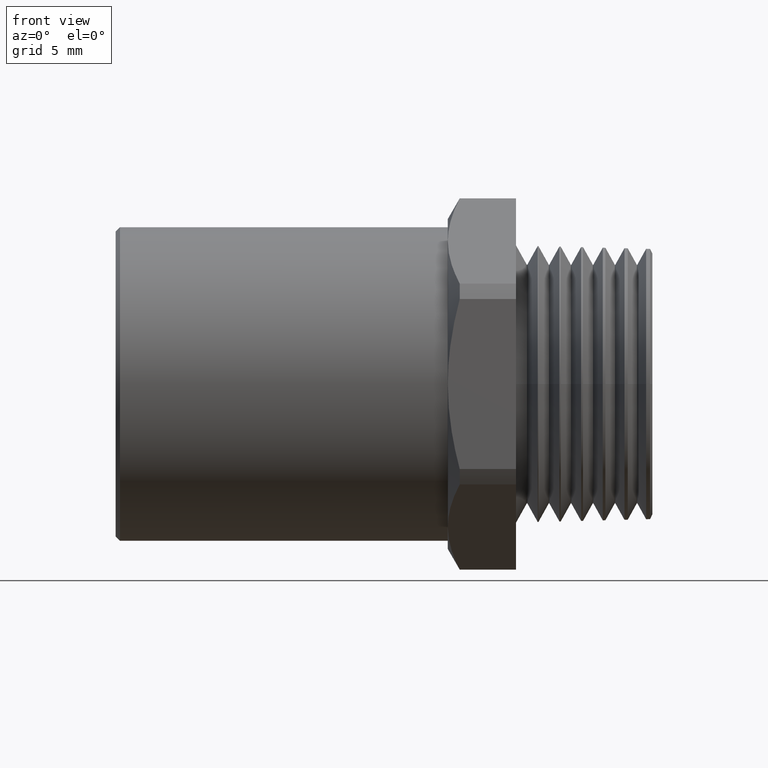
[diagram: clean part render]
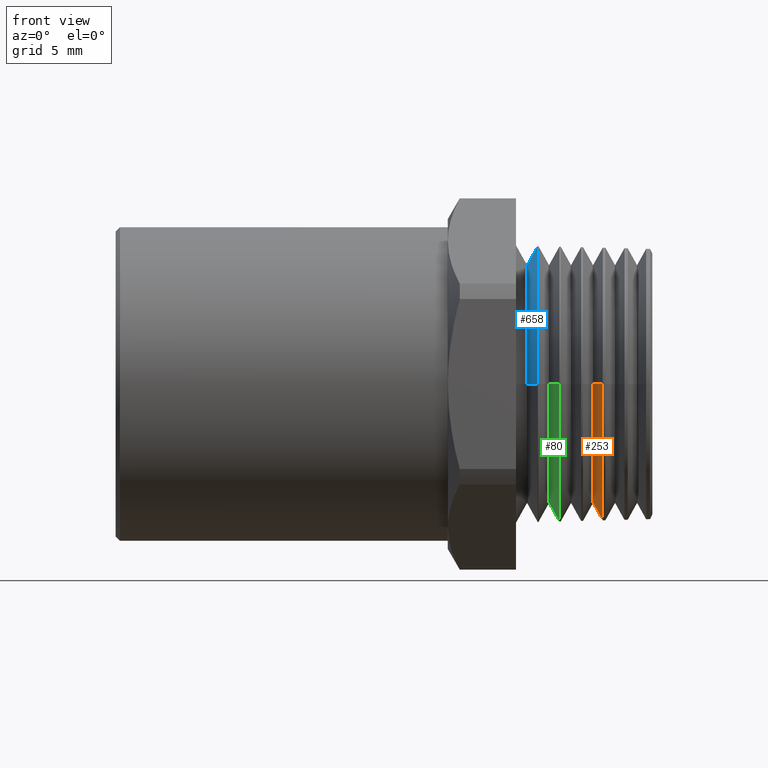
[diagram: same view with three faces highlighted in distinct colors, each labeled with its STEP entity id]
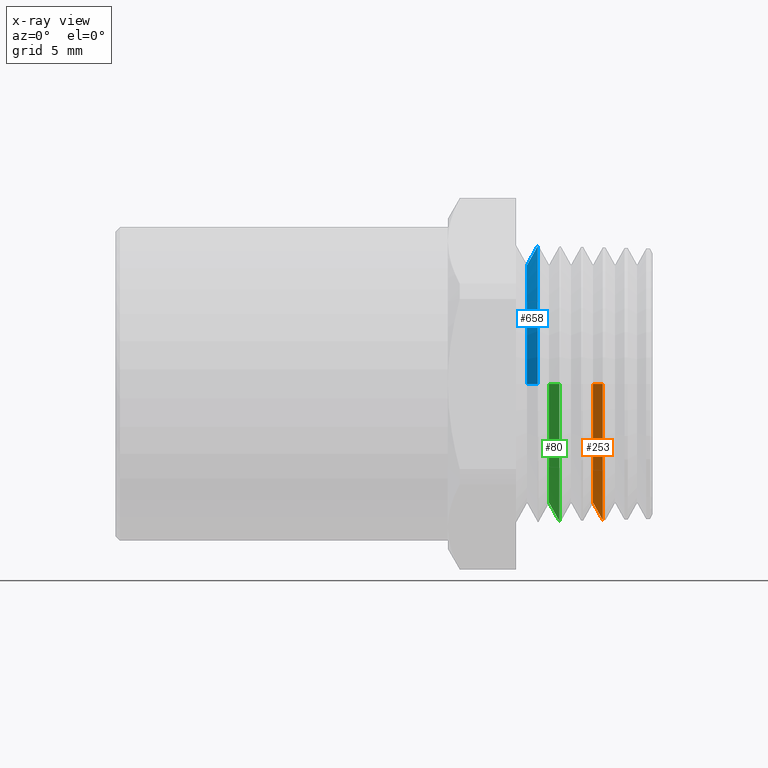
[diagram: x-ray of the same camera — body ghosted, the three highlighted faces saturated]
A machine part, front view with three faces highlighted in distinct colors.
The next image is the same camera in x-ray (body ghosted, the three faces saturated) — at least one of them is partly hidden behind the body in this view.
Their STEP definitions:

[orange] entity #253 — the highlighted conical surface has half-angle 60 deg.
#112 = EDGE_CURVE ( 'NONE', #576, #575, #946, .T. ) ;
#210 = EDGE_CURVE ( 'NONE', #665, #269, #1131, .T. ) ;
#217 = ORIENTED_EDGE ( 'NONE', *, *, #210, .F. ) ;
#223 = ORIENTED_EDGE ( 'NONE', *, *, #651, .T. ) ;
#243 = ORIENTED_EDGE ( 'NONE', *, *, #112, .T. ) ;
#249 = EDGE_CURVE ( 'NONE', #269, #649, #1209, .T. ) ;
#253 = ADVANCED_FACE ( 'NONE', ( #1202 ), #1197, .T. ) ;
#256 = EDGE_LOOP ( 'NONE', ( #257, #243, #223, #262, #217 ) ) ;
#257 = ORIENTED_EDGE ( 'NONE', *, *, #578, .F. ) ;
#262 = ORIENTED_EDGE ( 'NONE', *, *, #249, .F. ) ;
#269 = VERTEX_POINT ( 'NONE', #1240 ) ;
#575 = VERTEX_POINT ( 'NONE', #1788 ) ;
#576 = VERTEX_POINT ( 'NONE', #1787 ) ;
#578 = EDGE_CURVE ( 'NONE', #576, #665, #1786, .T. ) ;
#649 = VERTEX_POINT ( 'NONE', #1931 ) ;
#651 = EDGE_CURVE ( 'NONE', #575, #649, #1930, .T. ) ;
#665 = VERTEX_POINT ( 'NONE', #1965 ) ;
#938 = DIRECTION ( 'NONE',  ( 6.286987199267720100E-017, 1.000000000000000000, 0.0000000000000000000 ) ) ;
#939 = DIRECTION ( 'NONE',  ( 1.000000000000000000, -3.789761643835506200E-017, 0.0000000000000000000 ) ) ;
#940 = CARTESIAN_POINT ( 'NONE',  ( -0.1349300749675651500, -5.265020901947091200E-017, 0.0000000000000000000 ) ) ;
#941 = AXIS2_PLACEMENT_3D ( 'NONE', #940, #939, #938 ) ;
#946 = CIRCLE ( 'NONE', #941, 0.2715776161018803000 ) ;
#1127 = DIRECTION ( 'NONE',  ( 5.510651908282010900E-017, 1.000000000000000000, 0.0000000000000000000 ) ) ;
#1128 = DIRECTION ( 'NONE',  ( 1.000000000000000000, -3.789761643835506200E-017, 0.0000000000000000000 ) ) ;
#1129 = CARTESIAN_POINT ( 'NONE',  ( -0.1128408898604302000, 0.0000000000000000000, 0.0000000000000000000 ) ) ;
#1130 = AXIS2_PLACEMENT_3D ( 'NONE', #1129, #1128, #1127 ) ;
#1131 = CIRCLE ( 'NONE', #1130, 0.3098372070052345900 ) ;
#1192 = DIRECTION ( 'NONE',  ( 6.286987199267720100E-017, 1.000000000000000000, 0.0000000000000000000 ) ) ;
#1193 = DIRECTION ( 'NONE',  ( 1.000000000000000000, -3.789761643835506200E-017, 0.0000000000000000000 ) ) ;
#1194 = CARTESIAN_POINT ( 'NONE',  ( -0.1349300749675651500, -5.265020901947091200E-017, 0.0000000000000000000 ) ) ;
#1195 = AXIS2_PLACEMENT_3D ( 'NONE', #1194, #1193, #1192 ) ;
#1197 = CONICAL_SURFACE ( 'NONE', #1195, 0.2715776161018803000, 1.047197551196605800 ) ;
#1202 = FACE_OUTER_BOUND ( 'NONE', #256, .T. ) ;
#1205 = DIRECTION ( 'NONE',  ( 5.510651908282010900E-017, 1.000000000000000000, 0.0000000000000000000 ) ) ;
#1206 = DIRECTION ( 'NONE',  ( 1.000000000000000000, -3.789761643835506200E-017, 0.0000000000000000000 ) ) ;
#1207 = CARTESIAN_POINT ( 'NONE',  ( -0.1128408898604302000, 0.0000000000000000000, 0.0000000000000000000 ) ) ;
#1208 = AXIS2_PLACEMENT_3D ( 'NONE', #1207, #1206, #1205 ) ;
#1209 = CIRCLE ( 'NONE', #1208, 0.3098372070052345900 ) ;
#1240 = CARTESIAN_POINT ( 'NONE',  ( -0.1128408898604302000, 3.794411438157164200E-017, -0.3098372070052345900 ) ) ;
#1783 = DIRECTION ( 'NONE',  ( 0.4999999999999929500, -0.8660254037844427000, 1.060575238724911800E-016 ) ) ;
#1784 = VECTOR ( 'NONE', #1783, 39.37007874015748100 ) ;
#1785 = CARTESIAN_POINT ( 'NONE',  ( -0.1349300749675651800, -0.2715776161018803600, 3.325866582792364300E-017 ) ) ;
#1786 = LINE ( 'NONE', #1785, #1784 ) ;
#1787 = CARTESIAN_POINT ( 'NONE',  ( -0.1349300749675651800, -0.2715776161018803600, 0.0000000000000000000 ) ) ;
#1788 = CARTESIAN_POINT ( 'NONE',  ( -0.1349300749675651500, 0.2715776161018802500, 3.567331419987923000E-017 ) ) ;
#1927 = DIRECTION ( 'NONE',  ( 0.4999999999999929500, 0.8660254037844425900, 0.0000000000000000000 ) ) ;
#1928 = VECTOR ( 'NONE', #1927, 39.37007874015748900 ) ;
#1929 = CARTESIAN_POINT ( 'NONE',  ( -0.1349300749675651500, 0.2715776161018802500, 0.0000000000000000000 ) ) ;
#1930 = LINE ( 'NONE', #1929, #1928 ) ;
#1931 = CARTESIAN_POINT ( 'NONE',  ( -0.1128408898604302000, 0.3098372070052324800, 0.0000000000000000000 ) ) ;
#1965 = CARTESIAN_POINT ( 'NONE',  ( -0.1128408898604302100, -0.3098372070052326500, 3.794411438157139500E-017 ) ) ;

[blue] entity #658 — the highlighted conical surface has half-angle 60 deg.
#638 = VERTEX_POINT ( 'NONE', #1891 ) ;
#639 = ORIENTED_EDGE ( 'NONE', *, *, #640, .F. ) ;
#640 = EDGE_CURVE ( 'NONE', #662, #638, #1890, .T. ) ;
#658 = ADVANCED_FACE ( 'NONE', ( #1915 ), #1976, .T. ) ;
#659 = EDGE_LOOP ( 'NONE', ( #660, #664, #672, #675, #639 ) ) ;
#660 = ORIENTED_EDGE ( 'NONE', *, *, #661, .T. ) ;
#661 = EDGE_CURVE ( 'NONE', #662, #663, #1914, .T. ) ;
#662 = VERTEX_POINT ( 'NONE', #1967 ) ;
#663 = VERTEX_POINT ( 'NONE', #1966 ) ;
#664 = ORIENTED_EDGE ( 'NONE', *, *, #670, .T. ) ;
#670 = EDGE_CURVE ( 'NONE', #663, #671, #1958, .T. ) ;
#671 = VERTEX_POINT ( 'NONE', #1954 ) ;
#672 = ORIENTED_EDGE ( 'NONE', *, *, #673, .F. ) ;
#673 = EDGE_CURVE ( 'NONE', #674, #671, #1953, .T. ) ;
#674 = VERTEX_POINT ( 'NONE', #1948 ) ;
#675 = ORIENTED_EDGE ( 'NONE', *, *, #676, .F. ) ;
#676 = EDGE_CURVE ( 'NONE', #638, #674, #1947, .T. ) ;
#1887 = DIRECTION ( 'NONE',  ( 0.4999999999999929500, 0.8660254037844425900, 0.0000000000000000000 ) ) ;
#1888 = VECTOR ( 'NONE', #1887, 39.37007874015748900 ) ;
#1889 = CARTESIAN_POINT ( 'NONE',  ( -0.2849300749675651700, 0.2715776161018803000, 0.0000000000000000000 ) ) ;
#1890 = LINE ( 'NONE', #1889, #1888 ) ;
#1891 = CARTESIAN_POINT ( 'NONE',  ( -0.2606068970366619600, 0.3137065960797434900, 0.0000000000000000000 ) ) ;
#1914 = CIRCLE ( 'NONE', #1971, 0.2715776161018803000 ) ;
#1915 = FACE_OUTER_BOUND ( 'NONE', #659, .T. ) ;
#1944 = DIRECTION ( 'NONE',  ( 1.000000000000000000, -3.789761643835506200E-017, 0.0000000000000000000 ) ) ;
#1945 = CARTESIAN_POINT ( 'NONE',  ( -0.2606068970366619600, -4.788735702150489500E-017, 0.0000000000000000000 ) ) ;
#1946 = AXIS2_PLACEMENT_3D ( 'NONE', #1945, #1944, #2005 ) ;
#1947 = CIRCLE ( 'NONE', #1946, 0.3137065960797435500 ) ;
#1948 = CARTESIAN_POINT ( 'NONE',  ( -0.2606068970366619600, 0.0000000000000000000, 0.3137065960797433300 ) ) ;
#1949 = DIRECTION ( 'NONE',  ( 0.0000000000000000000, 1.000000000000000000, 0.0000000000000000000 ) ) ;
#1950 = DIRECTION ( 'NONE',  ( 1.000000000000000000, -3.789761643835506200E-017, 0.0000000000000000000 ) ) ;
#1951 = CARTESIAN_POINT ( 'NONE',  ( -0.2606068970366619600, -4.788735702150489500E-017, 0.0000000000000000000 ) ) ;
#1952 = AXIS2_PLACEMENT_3D ( 'NONE', #1951, #1950, #1949 ) ;
#1953 = CIRCLE ( 'NONE', #1952, 0.3137065960797435500 ) ;
#1954 = CARTESIAN_POINT ( 'NONE',  ( -0.2606068970366619600, -0.3137065960797436000, 3.841797787604695300E-017 ) ) ;
#1955 = DIRECTION ( 'NONE',  ( 0.4999999999999929500, -0.8660254037844427000, 1.060575238724911800E-016 ) ) ;
#1956 = VECTOR ( 'NONE', #1955, 39.37007874015748100 ) ;
#1957 = CARTESIAN_POINT ( 'NONE',  ( -0.2849300749675651700, -0.2715776161018803600, 3.325866582792364300E-017 ) ) ;
#1958 = LINE ( 'NONE', #1957, #1956 ) ;
#1966 = CARTESIAN_POINT ( 'NONE',  ( -0.2849300749675651700, -0.2715776161018803600, 0.0000000000000000000 ) ) ;
#1967 = CARTESIAN_POINT ( 'NONE',  ( -0.2849300749675651700, 0.2715776161018803000, 3.591752000053264400E-017 ) ) ;
#1968 = DIRECTION ( 'NONE',  ( 0.0000000000000000000, 1.000000000000000000, 0.0000000000000000000 ) ) ;
#1969 = DIRECTION ( 'NONE',  ( 1.000000000000000000, -3.789761643835506200E-017, 0.0000000000000000000 ) ) ;
#1970 = CARTESIAN_POINT ( 'NONE',  ( -0.2849300749675651700, -4.696556655371765400E-017, 0.0000000000000000000 ) ) ;
#1971 = AXIS2_PLACEMENT_3D ( 'NONE', #1970, #1969, #1968 ) ;
#1972 = DIRECTION ( 'NONE',  ( 0.0000000000000000000, 1.000000000000000000, 0.0000000000000000000 ) ) ;
#1973 = DIRECTION ( 'NONE',  ( 1.000000000000000000, -3.789761643835506200E-017, 0.0000000000000000000 ) ) ;
#1974 = CARTESIAN_POINT ( 'NONE',  ( -0.2849300749675651700, -4.696556655371765400E-017, 0.0000000000000000000 ) ) ;
#1975 = AXIS2_PLACEMENT_3D ( 'NONE', #1974, #1973, #1972 ) ;
#1976 = CONICAL_SURFACE ( 'NONE', #1975, 0.2715776161018803000, 1.047197551196605800 ) ;
#2005 = DIRECTION ( 'NONE',  ( 0.0000000000000000000, 1.000000000000000000, 0.0000000000000000000 ) ) ;

[green] entity #80 — the highlighted conical surface has half-angle 60 deg.
#80 = ADVANCED_FACE ( 'NONE', ( #922 ), #921, .T. ) ;
#84 = EDGE_LOOP ( 'NONE', ( #90, #88, #111, #109, #110 ) ) ;
#88 = ORIENTED_EDGE ( 'NONE', *, *, #93, .T. ) ;
#90 = ORIENTED_EDGE ( 'NONE', *, *, #668, .F. ) ;
#93 = EDGE_CURVE ( 'NONE', #745, #744, #906, .T. ) ;
#109 = ORIENTED_EDGE ( 'NONE', *, *, #782, .F. ) ;
#110 = ORIENTED_EDGE ( 'NONE', *, *, #147, .F. ) ;
#111 = ORIENTED_EDGE ( 'NONE', *, *, #714, .T. ) ;
#147 = EDGE_CURVE ( 'NONE', #669, #780, #1022, .T. ) ;
#668 = EDGE_CURVE ( 'NONE', #745, #669, #1963, .T. ) ;
#669 = VERTEX_POINT ( 'NONE', #1959 ) ;
#712 = VERTEX_POINT ( 'NONE', #2056 ) ;
#714 = EDGE_CURVE ( 'NONE', #744, #712, #2055, .T. ) ;
#744 = VERTEX_POINT ( 'NONE', #2117 ) ;
#745 = VERTEX_POINT ( 'NONE', #2116 ) ;
#780 = VERTEX_POINT ( 'NONE', #2173 ) ;
#782 = EDGE_CURVE ( 'NONE', #780, #712, #2172, .T. ) ;
#902 = DIRECTION ( 'NONE',  ( 0.0000000000000000000, 1.000000000000000000, 0.0000000000000000000 ) ) ;
#903 = DIRECTION ( 'NONE',  ( 1.000000000000000000, -3.789761643835506200E-017, 0.0000000000000000000 ) ) ;
#904 = CARTESIAN_POINT ( 'NONE',  ( -0.2349300749675651600, -4.886044737563540600E-017, 0.0000000000000000000 ) ) ;
#905 = AXIS2_PLACEMENT_3D ( 'NONE', #904, #903, #902 ) ;
#906 = CIRCLE ( 'NONE', #905, 0.2715776161018803000 ) ;
#917 = DIRECTION ( 'NONE',  ( 0.0000000000000000000, 1.000000000000000000, 0.0000000000000000000 ) ) ;
#918 = DIRECTION ( 'NONE',  ( 1.000000000000000000, -3.789761643835506200E-017, 0.0000000000000000000 ) ) ;
#919 = AXIS2_PLACEMENT_3D ( 'NONE', #926, #918, #917 ) ;
#921 = CONICAL_SURFACE ( 'NONE', #919, 0.2715776161018803000, 1.047197551196605800 ) ;
#922 = FACE_OUTER_BOUND ( 'NONE', #84, .T. ) ;
#926 = CARTESIAN_POINT ( 'NONE',  ( -0.2349300749675651600, -4.886044737563540600E-017, 0.0000000000000000000 ) ) ;
#964 = CARTESIAN_POINT ( 'NONE',  ( -0.2113515613112508000, 0.0000000000000000000, 0.0000000000000000000 ) ) ;
#1019 = DIRECTION ( 'NONE',  ( 0.0000000000000000000, 1.000000000000000000, 0.0000000000000000000 ) ) ;
#1020 = DIRECTION ( 'NONE',  ( 1.000000000000000000, -3.789761643835506200E-017, 0.0000000000000000000 ) ) ;
#1021 = AXIS2_PLACEMENT_3D ( 'NONE', #964, #1020, #1019 ) ;
#1022 = CIRCLE ( 'NONE', #1021, 0.3124167997215737100 ) ;
#1959 = CARTESIAN_POINT ( 'NONE',  ( -0.2113515613112508000, -0.3124167997215741600, 3.826002337788854900E-017 ) ) ;
#1960 = DIRECTION ( 'NONE',  ( 0.4999999999999929500, -0.8660254037844427000, 1.060575238724911800E-016 ) ) ;
#1961 = VECTOR ( 'NONE', #1960, 39.37007874015748100 ) ;
#1962 = CARTESIAN_POINT ( 'NONE',  ( -0.2349300749675651600, -0.2715776161018803600, 3.325866582792364300E-017 ) ) ;
#1963 = LINE ( 'NONE', #1962, #1961 ) ;
#2052 = DIRECTION ( 'NONE',  ( 0.4999999999999929500, 0.8660254037844425900, 0.0000000000000000000 ) ) ;
#2053 = VECTOR ( 'NONE', #2052, 39.37007874015748900 ) ;
#2054 = CARTESIAN_POINT ( 'NONE',  ( -0.2349300749675651600, 0.2715776161018803000, 0.0000000000000000000 ) ) ;
#2055 = LINE ( 'NONE', #2054, #2053 ) ;
#2056 = CARTESIAN_POINT ( 'NONE',  ( -0.2113515613112508000, 0.3124167997215741600, 0.0000000000000000000 ) ) ;
#2116 = CARTESIAN_POINT ( 'NONE',  ( -0.2349300749675651600, -0.2715776161018803600, 0.0000000000000000000 ) ) ;
#2117 = CARTESIAN_POINT ( 'NONE',  ( -0.2349300749675651600, 0.2715776161018803000, 3.583611806698150200E-017 ) ) ;
#2168 = DIRECTION ( 'NONE',  ( 0.0000000000000000000, 1.000000000000000000, 0.0000000000000000000 ) ) ;
#2169 = DIRECTION ( 'NONE',  ( 1.000000000000000000, -3.789761643835506200E-017, 0.0000000000000000000 ) ) ;
#2170 = CARTESIAN_POINT ( 'NONE',  ( -0.2113515613112508000, 0.0000000000000000000, 0.0000000000000000000 ) ) ;
#2171 = AXIS2_PLACEMENT_3D ( 'NONE', #2170, #2169, #2168 ) ;
#2172 = CIRCLE ( 'NONE', #2171, 0.3124167997215737100 ) ;
#2173 = CARTESIAN_POINT ( 'NONE',  ( -0.2113515613112508000, 3.826002337788849300E-017, -0.3124167997215737100 ) ) ;